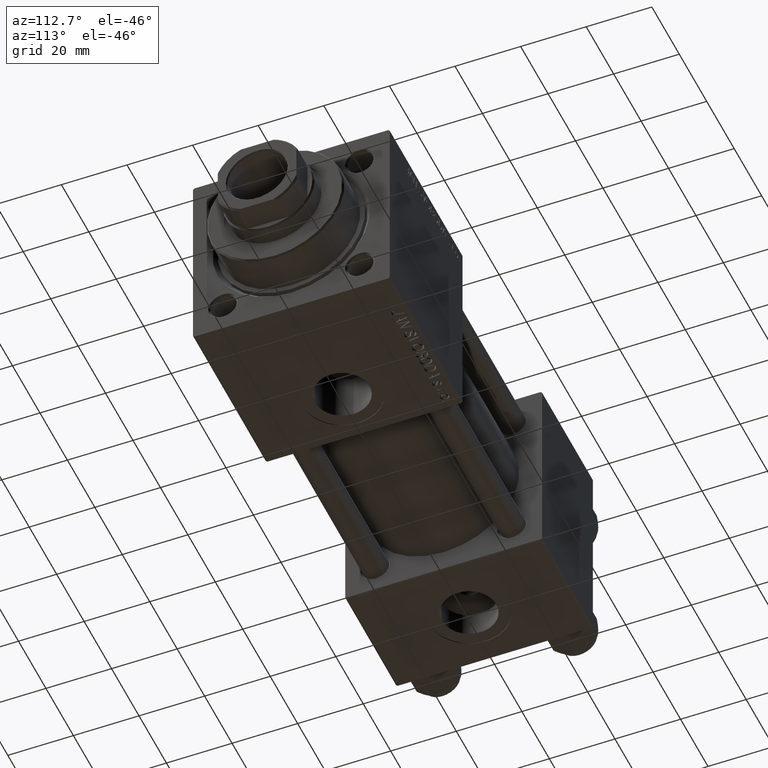
[diagram: clean part render]
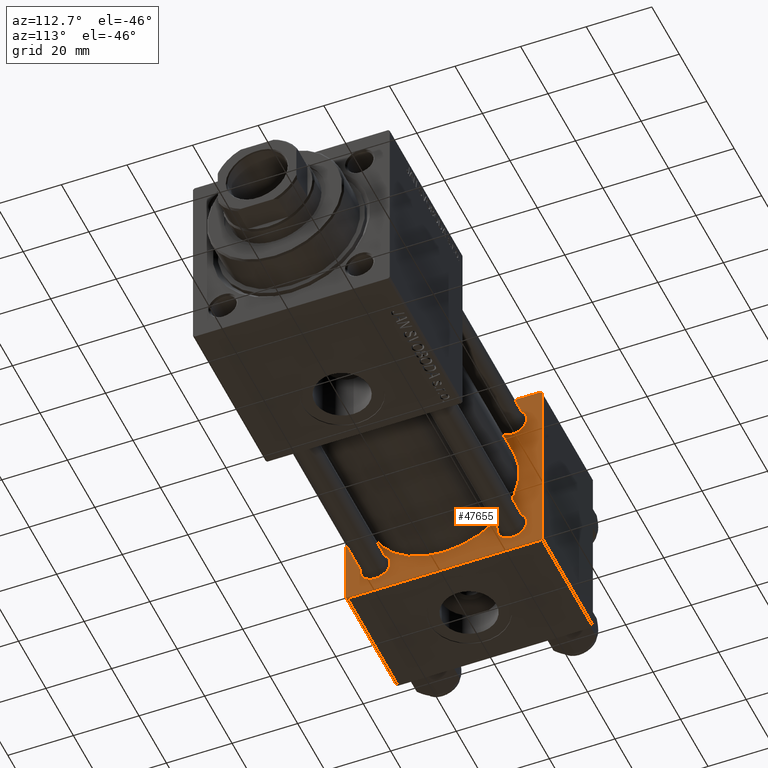
[diagram: same view with one face highlighted and labeled with its STEP entity id]
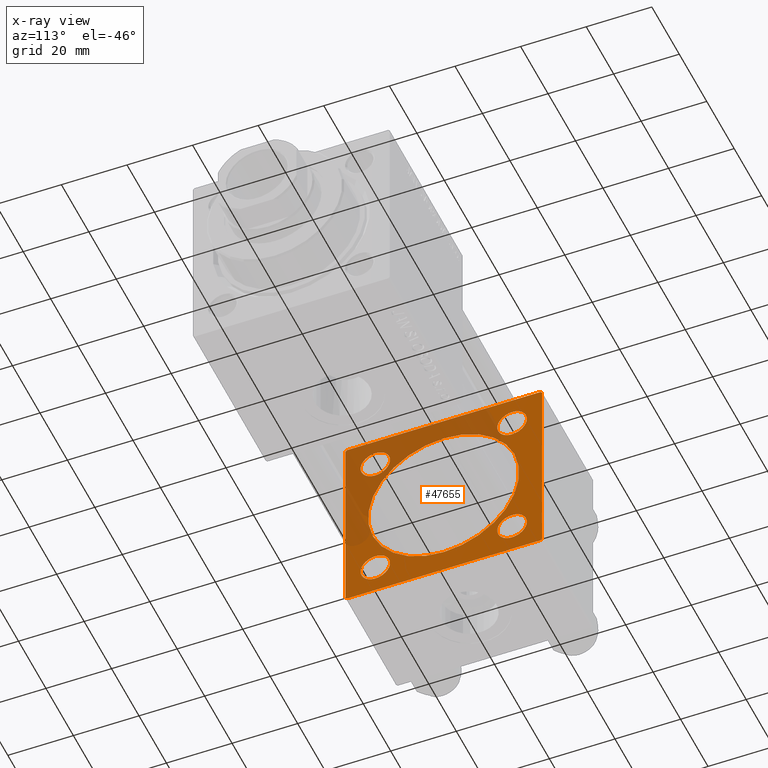
[diagram: x-ray of the same camera — body ghosted, the highlighted face saturated]
A machine part, auxiliary view. The second image highlights one B-rep face of the part: STEP entity #47655.
The next image is the same camera in x-ray: the body ghosted, the highlighted face saturated — about 37% of this face is hidden behind the body in this view.
In plain terms, the highlighted planar face has unit normal (-1, 0, 0).
Its self-contained STEP definition (entity closure, byte-faithful):
#10 = CARTESIAN_POINT ( 'NONE',  ( 37.00000000000000000, -2.602085213965210642E-15, 23.00000000000000000 ) ) ;
#346 = ORIENTED_EDGE ( 'NONE', *, *, #23219, .T. ) ;
#1661 = CIRCLE ( 'NONE', #37758, 4.499999999999990230 ) ;
#1678 = DIRECTION ( 'NONE',  ( -0.000000000000000000, 0.7071067811865574537, 0.7071067811865376918 ) ) ;
#2327 = CARTESIAN_POINT ( 'NONE',  ( 37.00000000000000000, 20.84999999999999787, 16.35000000000001208 ) ) ;
#2389 = CARTESIAN_POINT ( 'NONE',  ( 37.00000000000000000, -20.84999999999999076, -25.34999999999999432 ) ) ;
#2638 = FACE_BOUND ( 'NONE', #40734, .T. ) ;
#2757 = DIRECTION ( 'NONE',  ( -1.000000000000000000, 0.000000000000000000, -0.000000000000000000 ) ) ;
#2952 = AXIS2_PLACEMENT_3D ( 'NONE', #31012, #11049, #43100 ) ;
#2993 = CIRCLE ( 'NONE', #9710, 4.499999999999990230 ) ;
#3516 = ORIENTED_EDGE ( 'NONE', *, *, #23333, .T. ) ;
#3801 = VECTOR ( 'NONE', #8722, 1000.000000000000114 ) ;
#4011 = ORIENTED_EDGE ( 'NONE', *, *, #6578, .F. ) ;
#4441 = CARTESIAN_POINT ( 'NONE',  ( 37.00000000000000000, 29.99999999999999289, 30.00000000000000000 ) ) ;
#4572 = EDGE_CURVE ( 'NONE', #20373, #45331, #29286, .T. ) ;
#4921 = CARTESIAN_POINT ( 'NONE',  ( 37.00000000000000000, -30.00000000000000000, 29.49999999999999289 ) ) ;
#5166 = DIRECTION ( 'NONE',  ( 0.000000000000000000, 0.000000000000000000, 1.000000000000000000 ) ) ;
#5194 = DIRECTION ( 'NONE',  ( -1.000000000000000000, 0.000000000000000000, -0.000000000000000000 ) ) ;
#5314 = ORIENTED_EDGE ( 'NONE', *, *, #26721, .T. ) ;
#6249 = VERTEX_POINT ( 'NONE', #42513 ) ;
#6366 = EDGE_CURVE ( 'NONE', #7899, #38480, #15051, .T. ) ;
#6578 = EDGE_CURVE ( 'NONE', #41988, #6249, #16091, .T. ) ;
#7165 = CARTESIAN_POINT ( 'NONE',  ( 37.00000000000000000, -2.602085213965210642E-15, 0.000000000000000000 ) ) ;
#7383 = VECTOR ( 'NONE', #30069, 1000.000000000000114 ) ;
#7899 = VERTEX_POINT ( 'NONE', #2327 ) ;
#8021 = CARTESIAN_POINT ( 'NONE',  ( 37.00000000000000000, -20.84999999999999076, 16.35000000000001208 ) ) ;
#8378 = AXIS2_PLACEMENT_3D ( 'NONE', #32752, #28814, #12543 ) ;
#8722 = DIRECTION ( 'NONE',  ( 0.000000000000000000, 0.7071067811865474617, -0.7071067811865474617 ) ) ;
#8777 = EDGE_CURVE ( 'NONE', #45335, #44432, #31868, .T. ) ;
#8883 = EDGE_CURVE ( 'NONE', #35127, #47281, #23525, .T. ) ;
#9408 = EDGE_CURVE ( 'NONE', #44432, #45335, #37792, .T. ) ;
#9629 = EDGE_CURVE ( 'NONE', #34859, #47284, #30199, .T. ) ;
#9710 = AXIS2_PLACEMENT_3D ( 'NONE', #35661, #23090, #19901 ) ;
#9974 = AXIS2_PLACEMENT_3D ( 'NONE', #7165, #11893, #44193 ) ;
#10226 = ORIENTED_EDGE ( 'NONE', *, *, #8777, .T. ) ;
#10393 = VERTEX_POINT ( 'NONE', #10 ) ;
#10608 = DIRECTION ( 'NONE',  ( 0.000000000000000000, -1.000000000000000000, -1.156482317317871725E-16 ) ) ;
#10792 = FACE_BOUND ( 'NONE', #28656, .T. ) ;
#10959 = AXIS2_PLACEMENT_3D ( 'NONE', #24442, #48094, #40462 ) ;
#11049 = DIRECTION ( 'NONE',  ( -1.000000000000000000, 0.000000000000000000, -0.000000000000000000 ) ) ;
#11154 = ORIENTED_EDGE ( 'NONE', *, *, #22893, .T. ) ;
#11842 = CIRCLE ( 'NONE', #18569, 23.00000000000000000 ) ;
#11893 = DIRECTION ( 'NONE',  ( 1.000000000000000000, -0.000000000000000000, 0.000000000000000000 ) ) ;
#12042 = CARTESIAN_POINT ( 'NONE',  ( 37.00000000000000000, -20.84999999999999076, 25.34999999999999432 ) ) ;
#12136 = EDGE_LOOP ( 'NONE', ( #29829, #25049 ) ) ;
#12450 = EDGE_LOOP ( 'NONE', ( #46090, #10226 ) ) ;
#12543 = DIRECTION ( 'NONE',  ( 0.000000000000000000, 0.000000000000000000, 1.000000000000000000 ) ) ;
#12778 = EDGE_CURVE ( 'NONE', #47284, #20373, #14565, .T. ) ;
#12939 = CARTESIAN_POINT ( 'NONE',  ( 37.00000000000000000, -29.50000000000001066, -30.00000000000000711 ) ) ;
#13055 = EDGE_CURVE ( 'NONE', #26465, #49083, #18615, .T. ) ;
#13353 = VECTOR ( 'NONE', #31845, 1000.000000000000000 ) ;
#13528 = CARTESIAN_POINT ( 'NONE',  ( 37.00000000000000000, -30.00000000000000000, 29.49999999999999289 ) ) ;
#13536 = VECTOR ( 'NONE', #1678, 999.9999999999998863 ) ;
#14339 = ORIENTED_EDGE ( 'NONE', *, *, #15211, .T. ) ;
#14565 = LINE ( 'NONE', #30580, #50519 ) ;
#14736 = CARTESIAN_POINT ( 'NONE',  ( 37.00000000000000000, -30.00000000000000000, -29.50000000000001776 ) ) ;
#14998 = PLANE ( 'NONE',  #2952 ) ;
#15051 = CIRCLE ( 'NONE', #32655, 4.499999999999990230 ) ;
#15211 = EDGE_CURVE ( 'NONE', #41988, #33563, #41890, .T. ) ;
#15338 = CARTESIAN_POINT ( 'NONE',  ( 37.00000000000000000, -30.00000000000000000, 29.99999999999999289 ) ) ;
#15375 = CARTESIAN_POINT ( 'NONE',  ( 37.00000000000000000, 20.84999999999999787, 20.85000000000000142 ) ) ;
#16091 = LINE ( 'NONE', #20031, #13353 ) ;
#16954 = AXIS2_PLACEMENT_3D ( 'NONE', #35748, #28636, #24454 ) ;
#17044 = CARTESIAN_POINT ( 'NONE',  ( 37.00000000000000000, 29.49999999999999289, 30.00000000000000000 ) ) ;
#18132 = CARTESIAN_POINT ( 'NONE',  ( 37.00000000000000000, -20.84999999999999076, -16.35000000000001208 ) ) ;
#18245 = CARTESIAN_POINT ( 'NONE',  ( 37.00000000000000000, 29.99999999999999289, -29.50000000000000000 ) ) ;
#18569 = AXIS2_PLACEMENT_3D ( 'NONE', #39077, #19885, #19635 ) ;
#18615 = CIRCLE ( 'NONE', #16954, 4.499999999999990230 ) ;
#18686 = FACE_BOUND ( 'NONE', #12450, .T. ) ;
#19055 = CIRCLE ( 'NONE', #40871, 4.499999999999990230 ) ;
#19507 = ORIENTED_EDGE ( 'NONE', *, *, #4572, .T. ) ;
#19635 = DIRECTION ( 'NONE',  ( 0.000000000000000000, 0.000000000000000000, 1.000000000000000000 ) ) ;
#19869 = ORIENTED_EDGE ( 'NONE', *, *, #41549, .F. ) ;
#19885 = DIRECTION ( 'NONE',  ( 1.000000000000000000, -0.000000000000000000, 0.000000000000000000 ) ) ;
#19901 = DIRECTION ( 'NONE',  ( 0.000000000000000000, 0.000000000000000000, 1.000000000000000000 ) ) ;
#20031 = CARTESIAN_POINT ( 'NONE',  ( 37.00000000000000000, 29.99999999999999289, -30.00000000000000000 ) ) ;
#20373 = VERTEX_POINT ( 'NONE', #36935 ) ;
#20411 = DIRECTION ( 'NONE',  ( -1.000000000000000000, 0.000000000000000000, -0.000000000000000000 ) ) ;
#20425 = CARTESIAN_POINT ( 'NONE',  ( 37.00000000000000000, -20.84999999999999076, 20.85000000000000497 ) ) ;
#20883 = CIRCLE ( 'NONE', #9974, 23.00000000000000000 ) ;
#21367 = VERTEX_POINT ( 'NONE', #46652 ) ;
#21499 = CARTESIAN_POINT ( 'NONE',  ( 37.00000000000000000, 20.84999999999999787, -16.35000000000001208 ) ) ;
#22893 = EDGE_CURVE ( 'NONE', #49083, #26465, #2993, .T. ) ;
#23090 = DIRECTION ( 'NONE',  ( -1.000000000000000000, 0.000000000000000000, -0.000000000000000000 ) ) ;
#23219 = EDGE_CURVE ( 'NONE', #45331, #47542, #35796, .T. ) ;
#23333 = EDGE_CURVE ( 'NONE', #47542, #6249, #48926, .T. ) ;
#23525 = CIRCLE ( 'NONE', #8378, 4.499999999999990230 ) ;
#23774 = ORIENTED_EDGE ( 'NONE', *, *, #8883, .T. ) ;
#24442 = CARTESIAN_POINT ( 'NONE',  ( 37.00000000000000000, -20.84999999999999076, 20.85000000000000497 ) ) ;
#24454 = DIRECTION ( 'NONE',  ( 0.000000000000000000, 0.000000000000000000, 1.000000000000000000 ) ) ;
#24528 = ORIENTED_EDGE ( 'NONE', *, *, #13055, .T. ) ;
#24636 = EDGE_LOOP ( 'NONE', ( #4011, #14339, #19869, #41065, #49025, #19507, #346, #3516 ) ) ;
#25049 = ORIENTED_EDGE ( 'NONE', *, *, #34556, .T. ) ;
#26465 = VERTEX_POINT ( 'NONE', #18132 ) ;
#26721 = EDGE_CURVE ( 'NONE', #47281, #35127, #19055, .T. ) ;
#26807 = FACE_BOUND ( 'NONE', #12136, .T. ) ;
#27651 = DIRECTION ( 'NONE',  ( 0.000000000000000000, 0.000000000000000000, -1.000000000000000000 ) ) ;
#28636 = DIRECTION ( 'NONE',  ( -1.000000000000000000, 0.000000000000000000, -0.000000000000000000 ) ) ;
#28656 = EDGE_LOOP ( 'NONE', ( #11154, #24528 ) ) ;
#28814 = DIRECTION ( 'NONE',  ( -1.000000000000000000, 0.000000000000000000, -0.000000000000000000 ) ) ;
#29286 = LINE ( 'NONE', #13528, #7383 ) ;
#29829 = ORIENTED_EDGE ( 'NONE', *, *, #6366, .T. ) ;
#30069 = DIRECTION ( 'NONE',  ( -0.000000000000000000, -0.7071067811865474617, -0.7071067811865474617 ) ) ;
#30199 = LINE ( 'NONE', #46231, #35288 ) ;
#30368 = VECTOR ( 'NONE', #40698, 1000.000000000000000 ) ;
#30580 = CARTESIAN_POINT ( 'NONE',  ( 37.00000000000000000, 29.99999999999999289, 30.00000000000000000 ) ) ;
#31012 = CARTESIAN_POINT ( 'NONE',  ( 37.00000000000000000, 0.000000000000000000, 0.000000000000000000 ) ) ;
#31144 = EDGE_CURVE ( 'NONE', #10393, #21367, #20883, .T. ) ;
#31845 = DIRECTION ( 'NONE',  ( 0.000000000000000000, -1.000000000000000000, -1.156482317317871725E-16 ) ) ;
#31868 = CIRCLE ( 'NONE', #32729, 4.499999999999990230 ) ;
#32348 = VECTOR ( 'NONE', #27651, 1000.000000000000000 ) ;
#32655 = AXIS2_PLACEMENT_3D ( 'NONE', #49483, #20411, #36421 ) ;
#32729 = AXIS2_PLACEMENT_3D ( 'NONE', #20425, #48792, #5166 ) ;
#32752 = CARTESIAN_POINT ( 'NONE',  ( 37.00000000000000000, 20.84999999999999787, -20.85000000000000142 ) ) ;
#33563 = VERTEX_POINT ( 'NONE', #49535 ) ;
#34556 = EDGE_CURVE ( 'NONE', #38480, #7899, #1661, .T. ) ;
#34859 = VERTEX_POINT ( 'NONE', #41859 ) ;
#35073 = DIRECTION ( 'NONE',  ( 0.000000000000000000, 0.000000000000000000, 1.000000000000000000 ) ) ;
#35127 = VERTEX_POINT ( 'NONE', #49419 ) ;
#35288 = VECTOR ( 'NONE', #42291, 1000.000000000000114 ) ;
#35661 = CARTESIAN_POINT ( 'NONE',  ( 37.00000000000000000, -20.84999999999999076, -20.85000000000000497 ) ) ;
#35748 = CARTESIAN_POINT ( 'NONE',  ( 37.00000000000000000, -20.84999999999999076, -20.85000000000000497 ) ) ;
#35796 = LINE ( 'NONE', #15338, #32348 ) ;
#36206 = CARTESIAN_POINT ( 'NONE',  ( 37.00000000000000000, 20.84999999999999787, -20.85000000000000142 ) ) ;
#36421 = DIRECTION ( 'NONE',  ( 0.000000000000000000, 0.000000000000000000, 1.000000000000000000 ) ) ;
#36935 = CARTESIAN_POINT ( 'NONE',  ( 37.00000000000000000, -29.49999999999998579, 29.99999999999999289 ) ) ;
#36980 = DIRECTION ( 'NONE',  ( 0.000000000000000000, 0.000000000000000000, 1.000000000000000000 ) ) ;
#37225 = CARTESIAN_POINT ( 'NONE',  ( 37.00000000000000000, 20.84999999999999787, 25.34999999999999076 ) ) ;
#37758 = AXIS2_PLACEMENT_3D ( 'NONE', #15375, #2757, #35073 ) ;
#37792 = CIRCLE ( 'NONE', #10959, 4.499999999999990230 ) ;
#38120 = FACE_BOUND ( 'NONE', #39958, .T. ) ;
#38480 = VERTEX_POINT ( 'NONE', #37225 ) ;
#39077 = CARTESIAN_POINT ( 'NONE',  ( 37.00000000000000000, -2.602085213965210642E-15, 0.000000000000000000 ) ) ;
#39580 = EDGE_CURVE ( 'NONE', #21367, #10393, #11842, .T. ) ;
#39958 = EDGE_LOOP ( 'NONE', ( #47661, #50517 ) ) ;
#40462 = DIRECTION ( 'NONE',  ( 0.000000000000000000, 0.000000000000000000, 1.000000000000000000 ) ) ;
#40698 = DIRECTION ( 'NONE',  ( 0.000000000000000000, 0.000000000000000000, -1.000000000000000000 ) ) ;
#40734 = EDGE_LOOP ( 'NONE', ( #23774, #5314 ) ) ;
#40871 = AXIS2_PLACEMENT_3D ( 'NONE', #36206, #5194, #36980 ) ;
#41065 = ORIENTED_EDGE ( 'NONE', *, *, #9629, .T. ) ;
#41279 = CARTESIAN_POINT ( 'NONE',  ( 37.00000000000000000, 29.49999999999997868, -30.00000000000000000 ) ) ;
#41549 = EDGE_CURVE ( 'NONE', #34859, #33563, #44383, .T. ) ;
#41859 = CARTESIAN_POINT ( 'NONE',  ( 37.00000000000000000, 29.99999999999999289, 29.50000000000000000 ) ) ;
#41890 = LINE ( 'NONE', #18245, #13536 ) ;
#41988 = VERTEX_POINT ( 'NONE', #41279 ) ;
#42291 = DIRECTION ( 'NONE',  ( 0.000000000000000000, -0.7071067811865474617, 0.7071067811865474617 ) ) ;
#42513 = CARTESIAN_POINT ( 'NONE',  ( 37.00000000000000000, -29.50000000000000000, -30.00000000000000711 ) ) ;
#43100 = DIRECTION ( 'NONE',  ( -0.000000000000000000, 0.000000000000000000, 1.000000000000000000 ) ) ;
#44193 = DIRECTION ( 'NONE',  ( 0.000000000000000000, 0.000000000000000000, 1.000000000000000000 ) ) ;
#44383 = LINE ( 'NONE', #4441, #30368 ) ;
#44432 = VERTEX_POINT ( 'NONE', #8021 ) ;
#45331 = VERTEX_POINT ( 'NONE', #4921 ) ;
#45335 = VERTEX_POINT ( 'NONE', #12042 ) ;
#46090 = ORIENTED_EDGE ( 'NONE', *, *, #9408, .T. ) ;
#46231 = CARTESIAN_POINT ( 'NONE',  ( 37.00000000000000000, 29.49999999999999289, 30.00000000000000000 ) ) ;
#46652 = CARTESIAN_POINT ( 'NONE',  ( 37.00000000000000000, 2.146024240737012665E-16, -23.00000000000000000 ) ) ;
#47281 = VERTEX_POINT ( 'NONE', #21499 ) ;
#47284 = VERTEX_POINT ( 'NONE', #17044 ) ;
#47542 = VERTEX_POINT ( 'NONE', #14736 ) ;
#47655 = ADVANCED_FACE ( 'NONE', ( #10792, #2638, #18686, #26807, #38120, #50980 ), #14998, .F. ) ;
#47661 = ORIENTED_EDGE ( 'NONE', *, *, #31144, .F. ) ;
#48094 = DIRECTION ( 'NONE',  ( -1.000000000000000000, 0.000000000000000000, -0.000000000000000000 ) ) ;
#48792 = DIRECTION ( 'NONE',  ( -1.000000000000000000, 0.000000000000000000, -0.000000000000000000 ) ) ;
#48926 = LINE ( 'NONE', #12939, #3801 ) ;
#49025 = ORIENTED_EDGE ( 'NONE', *, *, #12778, .T. ) ;
#49083 = VERTEX_POINT ( 'NONE', #2389 ) ;
#49419 = CARTESIAN_POINT ( 'NONE',  ( 37.00000000000000000, 20.84999999999999787, -25.34999999999999076 ) ) ;
#49483 = CARTESIAN_POINT ( 'NONE',  ( 37.00000000000000000, 20.84999999999999787, 20.85000000000000142 ) ) ;
#49535 = CARTESIAN_POINT ( 'NONE',  ( 37.00000000000000000, 29.99999999999999289, -29.50000000000000000 ) ) ;
#50517 = ORIENTED_EDGE ( 'NONE', *, *, #39580, .F. ) ;
#50519 = VECTOR ( 'NONE', #10608, 1000.000000000000000 ) ;
#50980 = FACE_OUTER_BOUND ( 'NONE', #24636, .T. ) ;